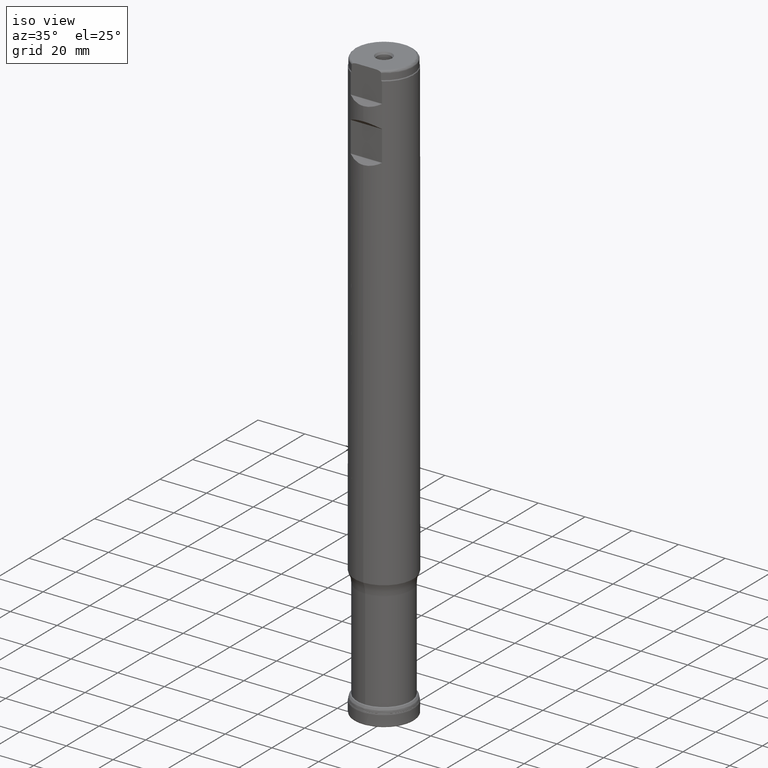
[diagram: clean part render]
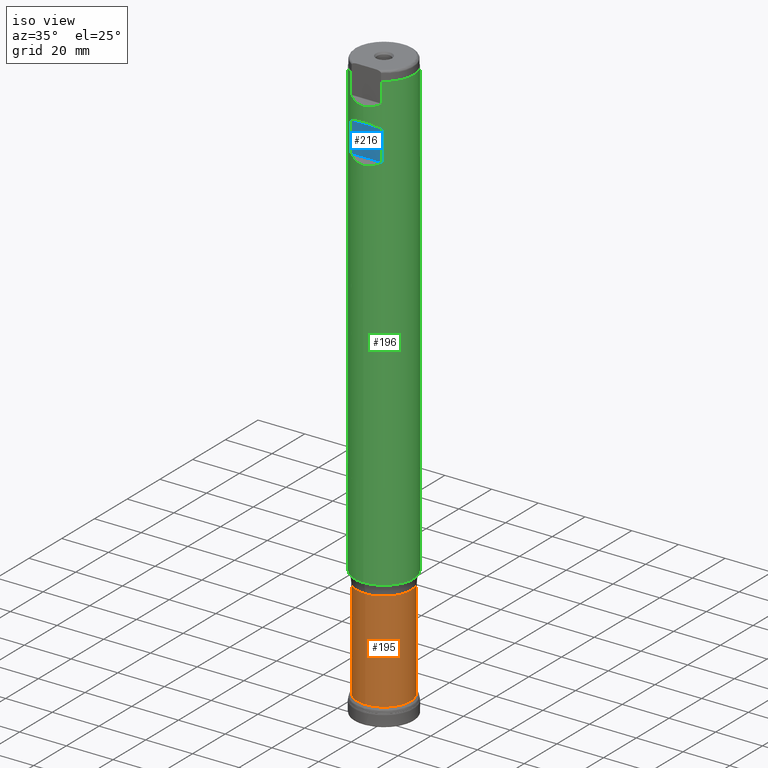
[diagram: same view with three faces highlighted in distinct colors, each labeled with its STEP entity id]
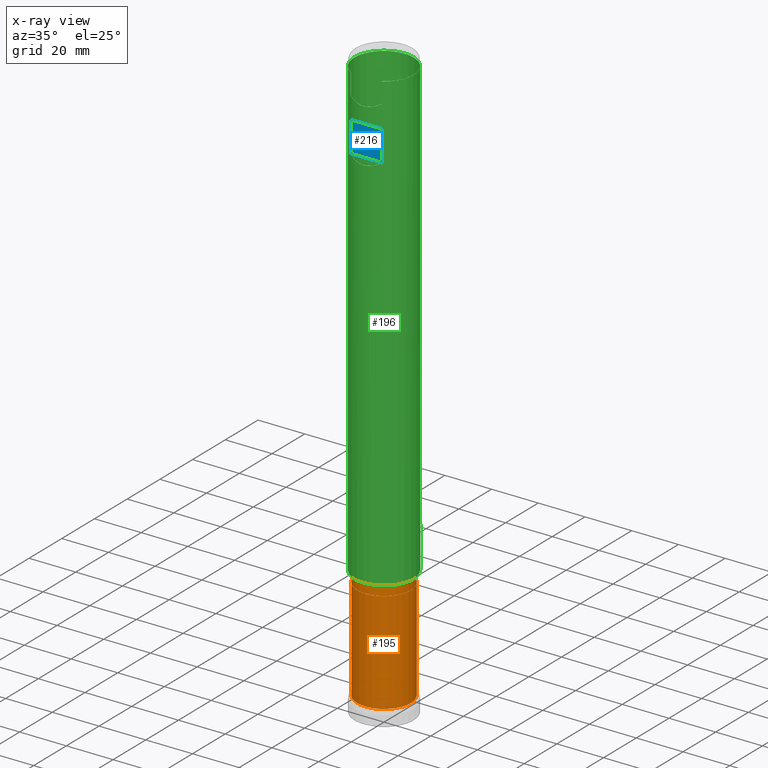
[diagram: x-ray of the same camera — body ghosted, the three highlighted faces saturated]
A machine part, iso view with three faces highlighted in distinct colors.
The next image is the same camera in x-ray (body ghosted, the three faces saturated) — at least one of them is partly hidden behind the body in this view.
Their STEP definitions:

[orange] entity #195 — the highlighted cylindrical surface (bore or boss wall) has radius 11.5 mm, axis along (0, 0, 1).
#175=CYLINDRICAL_SURFACE('',#828,11.5);
#195=ADVANCED_FACE('',(#297,#298),#175,.T.);
#297=FACE_BOUND('',#378,.T.);
#298=FACE_BOUND('',#379,.T.);
#378=EDGE_LOOP('',(#469));
#379=EDGE_LOOP('',(#470));
#469=ORIENTED_EDGE('',*,*,#665,.T.);
#470=ORIENTED_EDGE('',*,*,#666,.T.);
#605=VERTEX_POINT('',#1312);
#606=VERTEX_POINT('',#1314);
#665=EDGE_CURVE('',#605,#605,#732,.T.);
#666=EDGE_CURVE('',#606,#606,#733,.T.);
#732=CIRCLE('',#826,11.5);
#733=CIRCLE('',#827,11.5);
#826=AXIS2_PLACEMENT_3D('',#1311,#919,#920);
#827=AXIS2_PLACEMENT_3D('',#1313,#921,#922);
#828=AXIS2_PLACEMENT_3D('',#1315,#923,#924);
#919=DIRECTION('',(0.,1.17145536458252E-15,1.));
#920=DIRECTION('',(0.,-1.,1.20676415720126E-15));
#921=DIRECTION('',(0.,-1.17145536458252E-15,-1.));
#922=DIRECTION('',(0.,-1.,1.20676415720126E-15));
#923=DIRECTION('',(0.,1.17145536458252E-15,1.));
#924=DIRECTION('',(0.,-1.,1.17145536458252E-15));
#1311=CARTESIAN_POINT('',(0.,7.6668840021104E-15,6.54475128452092));
#1312=CARTESIAN_POINT('',(0.,-11.5,6.54475128452094));
#1313=CARTESIAN_POINT('',(0.,5.88553972582581E-14,50.2412631651848));
#1314=CARTESIAN_POINT('',(0.,-11.4999999999999,50.2412631651848));
#1315=CARTESIAN_POINT('',(0.,0.,0.));

[blue] entity #216 — the highlighted planar face has unit normal (0, 1, -0).
#168=FACE_OUTER_BOUND('',#412,.T.);
#216=ADVANCED_FACE('',(#168),#247,.F.);
#247=PLANE('',#861);
#252=LINE('',#1383,#271);
#253=LINE('',#1415,#272);
#259=LINE('',#1485,#278);
#260=LINE('',#1486,#279);
#271=VECTOR('',#933,1.);
#272=VECTOR('',#936,1.);
#278=VECTOR('',#998,1.);
#279=VECTOR('',#999,1.);
#412=EDGE_LOOP('',(#538,#539,#540,#541));
#538=ORIENTED_EDGE('',*,*,#680,.T.);
#539=ORIENTED_EDGE('',*,*,#698,.T.);
#540=ORIENTED_EDGE('',*,*,#676,.T.);
#541=ORIENTED_EDGE('',*,*,#699,.T.);
#614=VERTEX_POINT('',#1366);
#616=VERTEX_POINT('',#1382);
#617=VERTEX_POINT('',#1384);
#620=VERTEX_POINT('',#1414);
#676=EDGE_CURVE('',#617,#616,#252,.T.);
#680=EDGE_CURVE('',#614,#620,#253,.T.);
#698=EDGE_CURVE('',#620,#617,#259,.T.);
#699=EDGE_CURVE('',#616,#614,#260,.T.);
#861=AXIS2_PLACEMENT_3D('',#1487,#1000,#1001);
#933=DIRECTION('',(0.,1.17145536458252E-15,1.));
#936=DIRECTION('',(0.,-1.17145536458252E-15,-1.));
#998=DIRECTION('',(1.,-1.37230767120917E-30,-1.17145536458252E-15));
#999=DIRECTION('',(-1.,1.37230767120917E-30,1.17145536458252E-15));
#1000=DIRECTION('',(0.,1.,-1.17145536458252E-15));
#1001=DIRECTION('',(-1.17267306976032E-15,-1.17093834628434E-15,-1.));
#1366=CARTESIAN_POINT('',(-6.69014013306148,-10.7949999999997,231.457060931288));
#1382=CARTESIAN_POINT('',(6.69014013306148,-10.7949999999997,231.457060931288));
#1383=CARTESIAN_POINT('',(6.69014013306148,-10.795,1.26458606606684E-14));
#1384=CARTESIAN_POINT('',(6.69014013306148,-10.7949999999997,218.599189068712));
#1414=CARTESIAN_POINT('',(-6.69014013306148,-10.7949999999997,218.599189068712));
#1415=CARTESIAN_POINT('',(-6.69014013306148,-10.795,1.26458606606684E-14));
#1485=CARTESIAN_POINT('',(19.,-10.7949999999997,218.599189068712));
#1486=CARTESIAN_POINT('',(19.,-10.7949999999997,231.457060931288));
#1487=CARTESIAN_POINT('',(19.,-10.7949999999997,231.581325));

[green] entity #196 — the highlighted cylindrical surface (bore or boss wall) has radius 12.7 mm, axis along (0, 0, 1).
#172=ELLIPSE('',#830,17.9605122421383,12.7);
#173=ELLIPSE('',#831,17.9605122421383,12.7);
#174=ELLIPSE('',#832,17.9605122421383,12.7);
#176=CYLINDRICAL_SURFACE('',#834,12.7);
#196=ADVANCED_FACE('',(#299,#300,#301),#176,.T.);
#250=LINE('',#1316,#269);
#251=LINE('',#1321,#270);
#252=LINE('',#1383,#271);
#253=LINE('',#1415,#272);
#269=VECTOR('',#925,1.);
#270=VECTOR('',#928,1.);
#271=VECTOR('',#933,1.);
#272=VECTOR('',#936,1.);
#299=FACE_BOUND('',#380,.T.);
#300=FACE_BOUND('',#381,.T.);
#301=FACE_BOUND('',#382,.T.);
#380=EDGE_LOOP('',(#471,#472,#473,#474,#475,#476));
#381=EDGE_LOOP('',(#477,#478,#479,#480,#481,#482,#483,#484));
#382=EDGE_LOOP('',(#485));
#471=ORIENTED_EDGE('',*,*,#667,.F.);
#472=ORIENTED_EDGE('',*,*,#668,.F.);
#473=ORIENTED_EDGE('',*,*,#669,.F.);
#474=ORIENTED_EDGE('',*,*,#670,.F.);
#475=ORIENTED_EDGE('',*,*,#671,.F.);
#476=ORIENTED_EDGE('',*,*,#672,.F.);
#477=ORIENTED_EDGE('',*,*,#673,.F.);
#478=ORIENTED_EDGE('',*,*,#674,.F.);
#479=ORIENTED_EDGE('',*,*,#675,.F.);
#480=ORIENTED_EDGE('',*,*,#676,.F.);
#481=ORIENTED_EDGE('',*,*,#677,.F.);
#482=ORIENTED_EDGE('',*,*,#678,.F.);
#483=ORIENTED_EDGE('',*,*,#679,.F.);
#484=ORIENTED_EDGE('',*,*,#680,.F.);
#485=ORIENTED_EDGE('',*,*,#681,.T.);
#607=VERTEX_POINT('',#1317);
#608=VERTEX_POINT('',#1318);
#609=VERTEX_POINT('',#1320);
#610=VERTEX_POINT('',#1322);
#611=VERTEX_POINT('',#1336);
#612=VERTEX_POINT('',#1338);
#613=VERTEX_POINT('',#1365);
#614=VERTEX_POINT('',#1366);
#615=VERTEX_POINT('',#1368);
#616=VERTEX_POINT('',#1382);
#617=VERTEX_POINT('',#1384);
#618=VERTEX_POINT('',#1398);
#619=VERTEX_POINT('',#1400);
#620=VERTEX_POINT('',#1414);
#621=VERTEX_POINT('',#1417);
#667=EDGE_CURVE('',#607,#608,#250,.T.);
#668=EDGE_CURVE('',#609,#607,#734,.T.);
#669=EDGE_CURVE('',#610,#609,#251,.T.);
#670=EDGE_CURVE('',#611,#610,#785,.T.);
#671=EDGE_CURVE('',#612,#611,#172,.T.);
#672=EDGE_CURVE('',#608,#612,#786,.T.);
#673=EDGE_CURVE('',#613,#614,#787,.T.);
#674=EDGE_CURVE('',#615,#613,#173,.T.);
#675=EDGE_CURVE('',#616,#615,#788,.T.);
#676=EDGE_CURVE('',#617,#616,#252,.T.);
#677=EDGE_CURVE('',#618,#617,#789,.T.);
#678=EDGE_CURVE('',#619,#618,#174,.T.);
#679=EDGE_CURVE('',#620,#619,#790,.T.);
#680=EDGE_CURVE('',#614,#620,#253,.T.);
#681=EDGE_CURVE('',#621,#621,#735,.T.);
#734=CIRCLE('',#829,12.7);
#735=CIRCLE('',#833,12.7);
#785=B_SPLINE_CURVE_WITH_KNOTS('',3,(#1323,#1324,#1325,#1326,#1327,#1328,
#1329,#1330,#1331,#1332,#1333,#1334,#1335),.UNSPECIFIED.,.F.,.F.,(4,3,3,
3,4),(0.,0.454256249547463,0.701388974586878,0.909298857750833,1.),
 .UNSPECIFIED.);
#786=B_SPLINE_CURVE_WITH_KNOTS('',3,(#1339,#1340,#1341,#1342,#1343,#1344,
#1345,#1346,#1347,#1348,#1349,#1350,#1351),.UNSPECIFIED.,.F.,.F.,(4,3,3,
3,4),(0.,0.198540334836336,0.440045943310666,0.804340831427634,1.),
 .UNSPECIFIED.);
#787=B_SPLINE_CURVE_WITH_KNOTS('',3,(#1352,#1353,#1354,#1355,#1356,#1357,
#1358,#1359,#1360,#1361,#1362,#1363,#1364),.UNSPECIFIED.,.F.,.F.,(4,3,3,
3,4),(0.,0.454256249547554,0.701388974586969,0.909298857751027,1.),
 .UNSPECIFIED.);
#788=B_SPLINE_CURVE_WITH_KNOTS('',3,(#1369,#1370,#1371,#1372,#1373,#1374,
#1375,#1376,#1377,#1378,#1379,#1380,#1381),.UNSPECIFIED.,.F.,.F.,(4,3,3,
3,4),(0.,0.198540334836337,0.440045943310675,0.804340831427764,1.),
 .UNSPECIFIED.);
#789=B_SPLINE_CURVE_WITH_KNOTS('',3,(#1385,#1386,#1387,#1388,#1389,#1390,
#1391,#1392,#1393,#1394,#1395,#1396,#1397),.UNSPECIFIED.,.F.,.F.,(4,3,3,
3,4),(0.,0.454256249547464,0.70138897458687,0.909298857750932,1.),
 .UNSPECIFIED.);
#790=B_SPLINE_CURVE_WITH_KNOTS('',3,(#1401,#1402,#1403,#1404,#1405,#1406,
#1407,#1408,#1409,#1410,#1411,#1412,#1413),.UNSPECIFIED.,.F.,.F.,(4,3,3,
3,4),(0.,0.198540334836336,0.440045943310666,0.804340831427637,1.),
 .UNSPECIFIED.);
#829=AXIS2_PLACEMENT_3D('',#1319,#926,#927);
#830=AXIS2_PLACEMENT_3D('',#1337,#929,#930);
#831=AXIS2_PLACEMENT_3D('',#1367,#931,#932);
#832=AXIS2_PLACEMENT_3D('',#1399,#934,#935);
#833=AXIS2_PLACEMENT_3D('',#1416,#937,#938);
#834=AXIS2_PLACEMENT_3D('',#1418,#939,#940);
#925=DIRECTION('',(0.,-1.17145536458252E-15,-1.));
#926=DIRECTION('',(0.,1.17145536458252E-15,1.));
#927=DIRECTION('',(0.,-1.,0.));
#928=DIRECTION('',(0.,1.17145536458252E-15,1.));
#929=DIRECTION('',(8.28344032153662E-16,-0.707106781186547,0.707106781186548));
#930=DIRECTION('',(-8.28344032153662E-16,0.707106781186548,0.707106781186547));
#931=DIRECTION('',(-8.28344032153662E-16,-0.707106781186549,-0.707106781186546));
#932=DIRECTION('',(-8.28344032153661E-16,-0.707106781186546,0.707106781186549));
#933=DIRECTION('',(0.,1.17145536458252E-15,1.));
#934=DIRECTION('',(8.28344032153662E-16,-0.707106781186547,0.707106781186548));
#935=DIRECTION('',(-8.28344032153662E-16,0.707106781186548,0.707106781186547));
#936=DIRECTION('',(0.,-1.17145536458252E-15,-1.));
#937=DIRECTION('',(0.,1.17145536458252E-15,1.));
#938=DIRECTION('',(0.,-1.,1.09273919746571E-15));
#939=DIRECTION('',(0.,1.17145536458252E-15,1.));
#940=DIRECTION('',(0.,-1.,1.17145536458252E-15));
#1316=CARTESIAN_POINT('',(-6.69014013306148,-10.795,1.26458606606684E-14));
#1317=CARTESIAN_POINT('',(-6.69014013306148,-10.7949999999997,250.));
#1318=CARTESIAN_POINT('',(-6.69014013306148,-10.7949999999997,241.424264068712));
#1319=CARTESIAN_POINT('',(0.,2.92863841145631E-13,250.));
#1320=CARTESIAN_POINT('',(6.69014013306149,-10.7949999999997,250.));
#1321=CARTESIAN_POINT('',(6.69014013306148,-10.795,1.26458606606684E-14));
#1322=CARTESIAN_POINT('',(6.69014013306148,-10.7949999999997,241.424264068712));
#1323=CARTESIAN_POINT('',(6.54623440172736,-10.8828679656438,241.212132034356));
#1324=CARTESIAN_POINT('',(6.5788299215062,-10.8632611934591,241.231738806541));
#1325=CARTESIAN_POINT('',(6.61005443367797,-10.8442651564321,241.256024927303));
#1326=CARTESIAN_POINT('',(6.63572442510509,-10.8285345894104,241.286437420492));
#1327=CARTESIAN_POINT('',(6.64977562370313,-10.8199240169484,241.303084562073));
#1328=CARTESIAN_POINT('',(6.66233211686898,-10.8121900792117,241.321902916555));
#1329=CARTESIAN_POINT('',(6.67178984893819,-10.8063509202505,241.342522348887));
#1330=CARTESIAN_POINT('',(6.679738115086,-10.8014436983962,241.359850893912));
#1331=CARTESIAN_POINT('',(6.68559716064126,-10.7978146344362,241.378866181141));
#1332=CARTESIAN_POINT('',(6.68832196021573,-10.7961265904254,241.398289368533));
#1333=CARTESIAN_POINT('',(6.6895244358762,-10.7953816432168,241.406860975159));
#1334=CARTESIAN_POINT('',(6.69014013306154,-10.7949999999997,241.415576529693));
#1335=CARTESIAN_POINT('',(6.69014013306154,-10.7949999999997,241.424264068712));
#1336=CARTESIAN_POINT('',(6.54623440172736,-10.8828679656438,241.212132034356));
#1337=CARTESIAN_POINT('',(0.,2.95318040134431E-13,252.095));
#1338=CARTESIAN_POINT('',(-6.54623440172736,-10.8828679656438,241.212132034356));
#1339=CARTESIAN_POINT('',(-6.69014013306148,-10.7949999999997,241.424264068712));
#1340=CARTESIAN_POINT('',(-6.69014013306148,-10.7949999999997,241.405472320337));
#1341=CARTESIAN_POINT('',(-6.68715871003453,-10.7968490069084,241.386447122199));
#1342=CARTESIAN_POINT('',(-6.68177413185822,-10.8001802971443,241.368754224466));
#1343=CARTESIAN_POINT('',(-6.6752297449279,-10.8042291291172,241.347250373115));
#1344=CARTESIAN_POINT('',(-6.6650516132505,-10.8105174882299,241.327077502903));
#1345=CARTESIAN_POINT('',(-6.65296403338819,-10.8179512649317,241.309181496629));
#1346=CARTESIAN_POINT('',(-6.63477792900557,-10.8291355913722,241.2822564511));
#1347=CARTESIAN_POINT('',(-6.61187730075075,-10.8431496607047,241.259474120481));
#1348=CARTESIAN_POINT('',(-6.58745474587888,-10.8579666591398,241.240374984423));
#1349=CARTESIAN_POINT('',(-6.57422829207236,-10.8659910589777,241.230031519451));
#1350=CARTESIAN_POINT('',(-6.56040907431856,-10.8743416534951,241.220658346499));
#1351=CARTESIAN_POINT('',(-6.54623440172977,-10.8828679656425,241.212132034352));
#1352=CARTESIAN_POINT('',(-6.54623440172736,-10.8828679656438,231.669192965644));
#1353=CARTESIAN_POINT('',(-6.57882992150621,-10.8632611934591,231.649586193459));
#1354=CARTESIAN_POINT('',(-6.61005443367798,-10.8442651564321,231.625300072697));
#1355=CARTESIAN_POINT('',(-6.63572442510511,-10.8285345894104,231.594887579508));
#1356=CARTESIAN_POINT('',(-6.64977562370314,-10.8199240169484,231.578240437927));
#1357=CARTESIAN_POINT('',(-6.66233211686899,-10.8121900792117,231.559422083445));
#1358=CARTESIAN_POINT('',(-6.67178984893819,-10.8063509202505,231.538802651113));
#1359=CARTESIAN_POINT('',(-6.67973811508601,-10.8014436983962,231.521474106088));
#1360=CARTESIAN_POINT('',(-6.68559716064127,-10.7978146344362,231.502458818859));
#1361=CARTESIAN_POINT('',(-6.68832196021573,-10.7961265904254,231.483035631467));
#1362=CARTESIAN_POINT('',(-6.6895244358762,-10.7953816432169,231.474464024841));
#1363=CARTESIAN_POINT('',(-6.69014013306154,-10.7949999999997,231.465748470307));
#1364=CARTESIAN_POINT('',(-6.69014013306155,-10.7949999999997,231.457060931288));
#1365=CARTESIAN_POINT('',(-6.54623440172736,-10.8828679656438,231.669192965644));
#1366=CARTESIAN_POINT('',(-6.69014013306148,-10.7949999999997,231.457060931288));
#1367=CARTESIAN_POINT('',(0.,2.58641324847711E-13,220.786325));
#1368=CARTESIAN_POINT('',(6.54623440172736,-10.8828679656438,231.669192965644));
#1369=CARTESIAN_POINT('',(6.69014013306148,-10.7949999999997,231.457060931288));
#1370=CARTESIAN_POINT('',(6.69014013306148,-10.7949999999997,231.475852679663));
#1371=CARTESIAN_POINT('',(6.68715871003453,-10.7968490069085,231.494877877801));
#1372=CARTESIAN_POINT('',(6.68177413185822,-10.8001802971443,231.512570775534));
#1373=CARTESIAN_POINT('',(6.67522974492789,-10.8042291291172,231.534074626885));
#1374=CARTESIAN_POINT('',(6.66505161325049,-10.8105174882299,231.554247497097));
#1375=CARTESIAN_POINT('',(6.65296403338819,-10.8179512649317,231.572143503371));
#1376=CARTESIAN_POINT('',(6.63477792900555,-10.8291355913723,231.5990685489));
#1377=CARTESIAN_POINT('',(6.61187730075073,-10.8431496607047,231.621850879519));
#1378=CARTESIAN_POINT('',(6.58745474587885,-10.8579666591398,231.640950015577));
#1379=CARTESIAN_POINT('',(6.57422829207233,-10.8659910589777,231.651293480549));
#1380=CARTESIAN_POINT('',(6.56040907431854,-10.8743416534951,231.660666653501));
#1381=CARTESIAN_POINT('',(6.54623440172976,-10.8828679656425,231.669192965648));
#1382=CARTESIAN_POINT('',(6.69014013306148,-10.7949999999997,231.457060931288));
#1383=CARTESIAN_POINT('',(6.69014013306148,-10.795,1.26458606606684E-14));
#1384=CARTESIAN_POINT('',(6.69014013306148,-10.7949999999997,218.599189068712));
#1385=CARTESIAN_POINT('',(6.54623440172736,-10.8828679656438,218.387057034356));
#1386=CARTESIAN_POINT('',(6.5788299215062,-10.8632611934591,218.406663806541));
#1387=CARTESIAN_POINT('',(6.61005443367797,-10.8442651564321,218.430949927303));
#1388=CARTESIAN_POINT('',(6.6357244251051,-10.8285345894104,218.461362420492));
#1389=CARTESIAN_POINT('',(6.64977562370314,-10.8199240169485,218.478009562073));
#1390=CARTESIAN_POINT('',(6.66233211686898,-10.8121900792117,218.496827916555));
#1391=CARTESIAN_POINT('',(6.67178984893819,-10.8063509202505,218.517447348887));
#1392=CARTESIAN_POINT('',(6.679738115086,-10.8014436983962,218.534775893912));
#1393=CARTESIAN_POINT('',(6.68559716064127,-10.7978146344362,218.553791181141));
#1394=CARTESIAN_POINT('',(6.68832196021573,-10.7961265904254,218.573214368533));
#1395=CARTESIAN_POINT('',(6.6895244358762,-10.7953816432169,218.581785975159));
#1396=CARTESIAN_POINT('',(6.69014013306154,-10.7949999999997,218.590501529693));
#1397=CARTESIAN_POINT('',(6.69014013306155,-10.7949999999997,218.599189068712));
#1398=CARTESIAN_POINT('',(6.54623440172736,-10.8828679656438,218.387057034356));
#1399=CARTESIAN_POINT('',(0.,2.68579483578683E-13,229.269925));
#1400=CARTESIAN_POINT('',(-6.54623440172736,-10.8828679656438,218.387057034356));
#1401=CARTESIAN_POINT('',(-6.69014013306148,-10.7949999999997,218.599189068712));
#1402=CARTESIAN_POINT('',(-6.69014013306148,-10.7949999999997,218.580397320337));
#1403=CARTESIAN_POINT('',(-6.68715871003453,-10.7968490069085,218.561372122199));
#1404=CARTESIAN_POINT('',(-6.68177413185822,-10.8001802971443,218.543679224466));
#1405=CARTESIAN_POINT('',(-6.6752297449279,-10.8042291291172,218.522175373115));
#1406=CARTESIAN_POINT('',(-6.6650516132505,-10.8105174882299,218.502002502903));
#1407=CARTESIAN_POINT('',(-6.65296403338819,-10.8179512649317,218.484106496629));
#1408=CARTESIAN_POINT('',(-6.63477792900556,-10.8291355913723,218.4571814511));
#1409=CARTESIAN_POINT('',(-6.61187730075075,-10.8431496607047,218.434399120482));
#1410=CARTESIAN_POINT('',(-6.58745474587888,-10.8579666591398,218.415299984423));
#1411=CARTESIAN_POINT('',(-6.57422829207236,-10.8659910589777,218.404956519451));
#1412=CARTESIAN_POINT('',(-6.56040907431856,-10.8743416534951,218.395583346499));
#1413=CARTESIAN_POINT('',(-6.54623440172977,-10.8828679656425,218.387057034352));
#1414=CARTESIAN_POINT('',(-6.69014013306148,-10.7949999999997,218.599189068712));
#1415=CARTESIAN_POINT('',(-6.69014013306148,-10.795,1.26458606606684E-14));
#1416=CARTESIAN_POINT('',(0.,6.44195019537576E-14,54.991));
#1417=CARTESIAN_POINT('',(0.,-12.6999999999999,54.991));
#1418=CARTESIAN_POINT('',(0.,0.,0.));